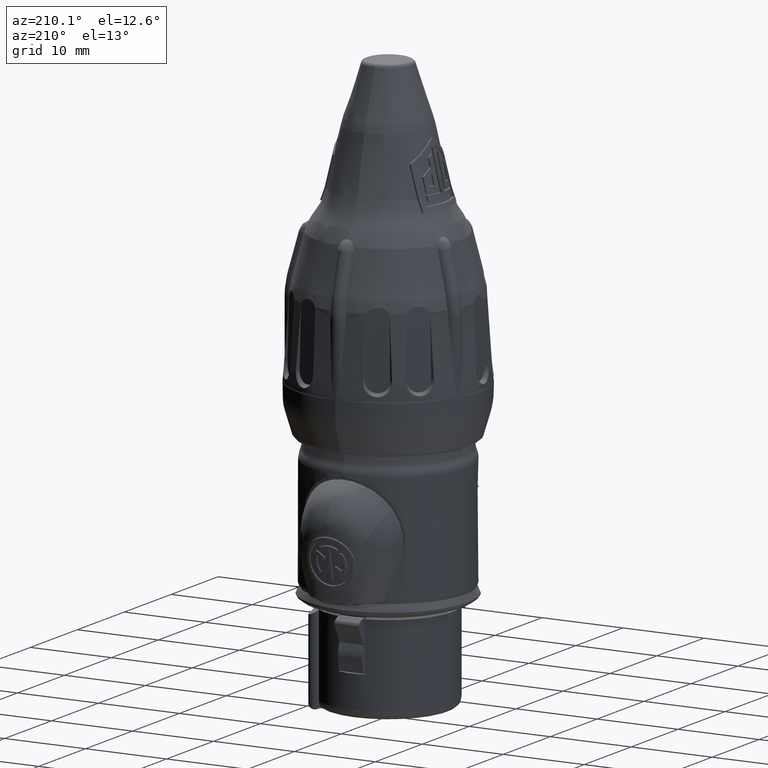
[diagram: clean part render]
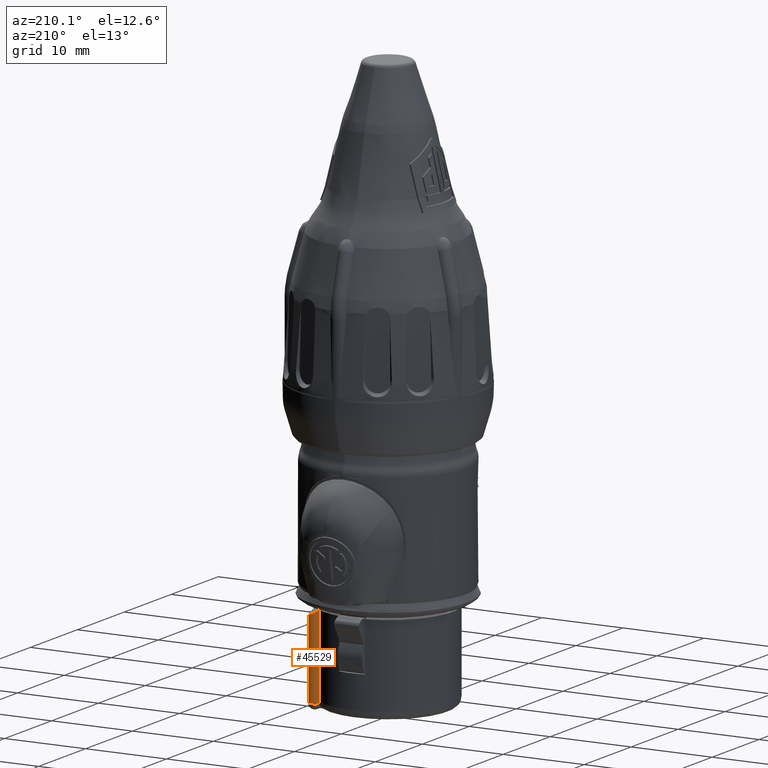
[diagram: same view with one face highlighted and labeled with its STEP entity id]
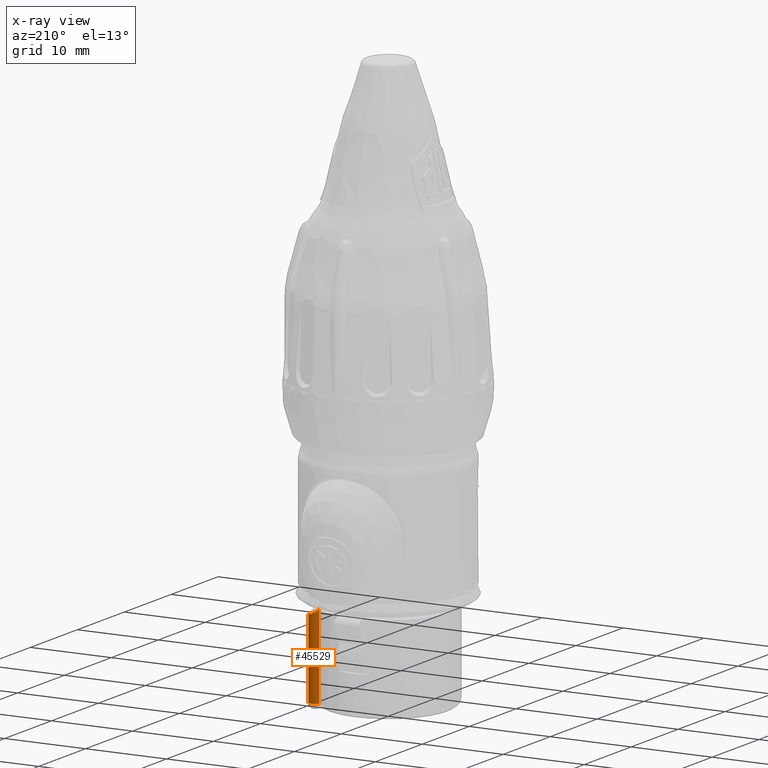
[diagram: x-ray of the same camera — body ghosted, the highlighted face saturated]
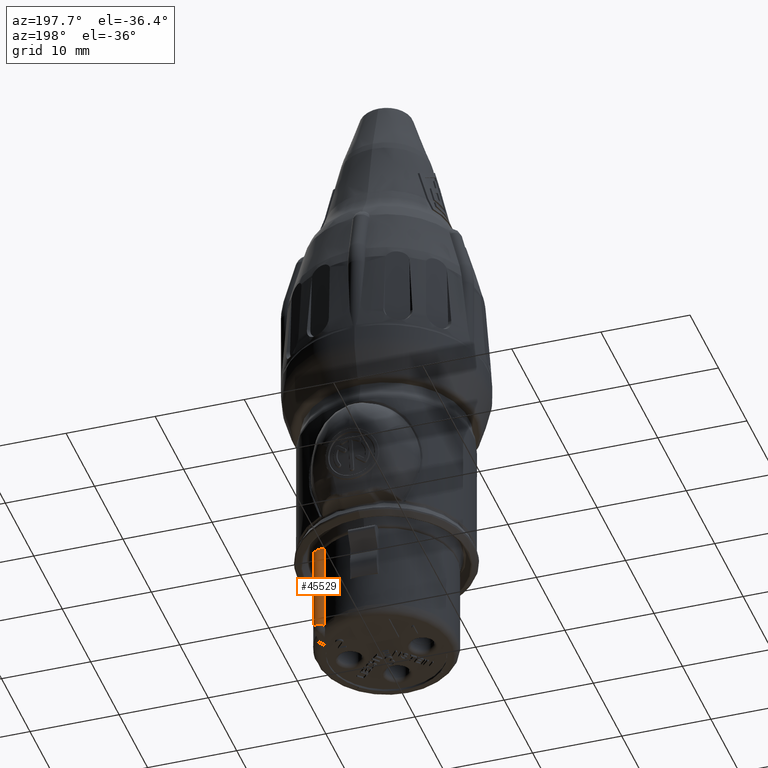
[diagram: same view with one face highlighted and labeled with its STEP entity id]
A machine part, auxiliary view. The second image highlights one B-rep face of the part: STEP entity #45529.
The next image is the same camera in x-ray: the body ghosted, the highlighted face saturated — about 0% of this face is hidden behind the body in this view.
A second angle (auxiliary view) of the same face is appended — the face is thin or edge-on in the first view.
In plain terms, the highlighted cylindrical surface (edge-blend (fillet) strip) has radius 0.75 mm, axis along (0, 0, -1).
Its self-contained STEP definition (entity closure, byte-faithful):
#250=DIRECTION('',(0.E0,0.E0,1.E0));
#251=VECTOR('',#250,1.005048094716E1);
#252=CARTESIAN_POINT('',(5.047797160808E0,6.044449422680E0,-1.31E1));
#253=LINE('',#252,#251);
#13386=CARTESIAN_POINT('',(5.034491960351E0,6.014182899925E0,-1.335E1));
#13387=CARTESIAN_POINT('',(5.038657925318E0,6.024256649584E0,
-1.330972633912E1));
#13388=CARTESIAN_POINT('',(5.045350414379E0,6.039271694309E0,
-1.322780509631E1));
#13389=CARTESIAN_POINT('',(5.047797160808E0,6.044449422680E0,
-1.314306742457E1));
#13390=CARTESIAN_POINT('',(5.047797160808E0,6.044449422680E0,-1.31E1));
#13422=DIRECTION('',(0.E0,0.E0,-1.E0));
#13423=VECTOR('',#13422,9.739704439908E0);
#13424=CARTESIAN_POINT('',(6.2E0,6.310063942526E0,-3.610295560092E0));
#13425=LINE('',#13424,#13423);
#13430=CARTESIAN_POINT('',(5.727564927611E0,5.727564927611E0,-1.335E1));
#13431=DIRECTION('',(0.E0,0.E0,-1.E0));
#13432=DIRECTION('',(-9.240972896801E-1,3.821572964185E-1,0.E0));
#13433=AXIS2_PLACEMENT_3D('',#13430,#13431,#13432);
#13435=CARTESIAN_POINT('',(5.047797160808E0,6.044449422680E0,
-3.049519052838E0));
#13436=CARTESIAN_POINT('',(5.081494210217E0,6.116734966407E0,
-3.094022471375E0));
#13437=CARTESIAN_POINT('',(5.170670291021E0,6.248685092337E0,
-3.185553509943E0));
#13438=CARTESIAN_POINT('',(5.362705899503E0,6.397433520516E0,
-3.322407665135E0));
#13439=CARTESIAN_POINT('',(5.587193518040E0,6.476481221624E0,
-3.440983058238E0));
#13440=CARTESIAN_POINT('',(5.815904546855E0,6.483314630787E0,
-3.531039053229E0));
#13441=CARTESIAN_POINT('',(6.026303177428E0,6.426459277775E0,
-3.588882770484E0));
#13442=CARTESIAN_POINT('',(6.146774685884E0,6.353232264675E0,
-3.606536180690E0));
#13443=CARTESIAN_POINT('',(6.2E0,6.310063942526E0,-3.610295560092E0));
#17965=VERTEX_POINT('',#13386);
#17966=VERTEX_POINT('',#13390);
#17980=CARTESIAN_POINT('',(6.2E0,6.310063942526E0,-1.335E1));
#17982=VERTEX_POINT('',#17980);
#18256=CARTESIAN_POINT('',(5.047797160808E0,6.044449422680E0,
-3.049519052838E0));
#18257=VERTEX_POINT('',#18256);
#18260=CARTESIAN_POINT('',(6.2E0,6.310063942526E0,-3.610295560092E0));
#18261=VERTEX_POINT('',#18260);
#45517=CARTESIAN_POINT('',(5.727564927611E0,5.727564927611E0,-1.5E0));
#45518=DIRECTION('',(0.E0,0.E0,-1.E0));
#45519=DIRECTION('',(1.E0,0.E0,0.E0));
#45520=AXIS2_PLACEMENT_3D('',#45517,#45518,#45519);
#45521=CYLINDRICAL_SURFACE('',#45520,7.5E-1);
#45522=ORIENTED_EDGE('',*,*,#20972,.F.);
#45523=ORIENTED_EDGE('',*,*,#45461,.F.);
#45524=ORIENTED_EDGE('',*,*,#45493,.T.);
#45525=ORIENTED_EDGE('',*,*,#45508,.F.);
#45526=ORIENTED_EDGE('',*,*,#22683,.F.);
#45527=EDGE_LOOP('',(#45522,#45523,#45524,#45525,#45526));
#45528=FACE_OUTER_BOUND('',#45527,.F.);
#13391=B_SPLINE_CURVE_WITH_KNOTS('',3,(#13386,#13387,#13388,#13389,#13390),
.UNSPECIFIED.,.F.,.F.,(4,1,4),(0.E0,5.E-1,1.E0),.UNSPECIFIED.);
#13434=CIRCLE('',#13433,7.5E-1);
#13444=B_SPLINE_CURVE_WITH_KNOTS('',3,(#13435,#13436,#13437,#13438,#13439,
#13440,#13441,#13442,#13443),.UNSPECIFIED.,.F.,.F.,(4,1,1,1,1,1,4),(0.E0,
1.666666666667E-1,3.333333333333E-1,5.E-1,6.666666666667E-1,8.333333333333E-1,
1.E0),.UNSPECIFIED.);
#20972=EDGE_CURVE('',#17966,#18257,#253,.T.);
#22683=EDGE_CURVE('',#18257,#18261,#13444,.T.);
#45461=EDGE_CURVE('',#17965,#17966,#13391,.T.);
#45493=EDGE_CURVE('',#17965,#17982,#13434,.T.);
#45508=EDGE_CURVE('',#18261,#17982,#13425,.T.);
#45529=ADVANCED_FACE('',(#45528),#45521,.T.);